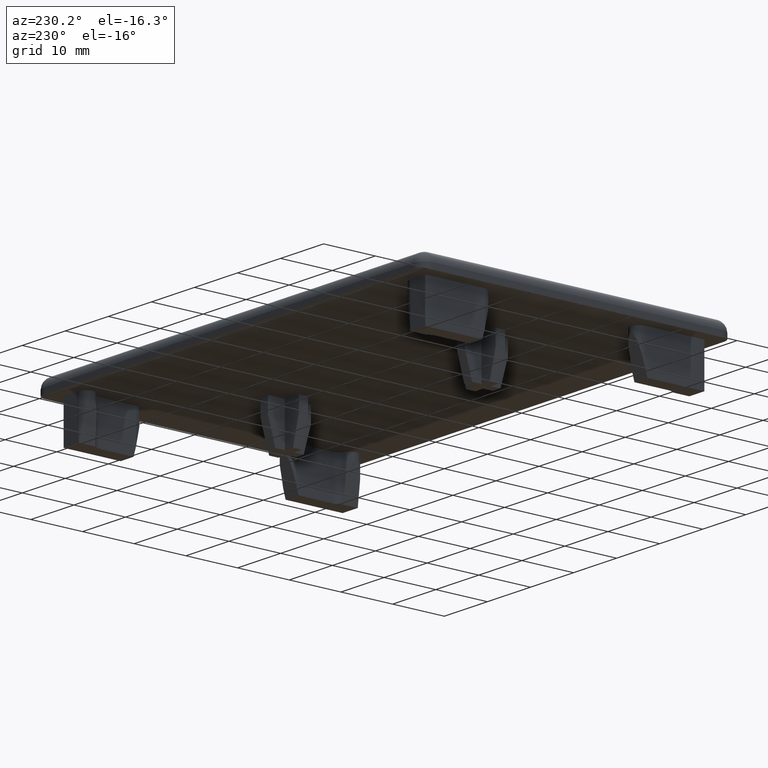
[diagram: clean part render]
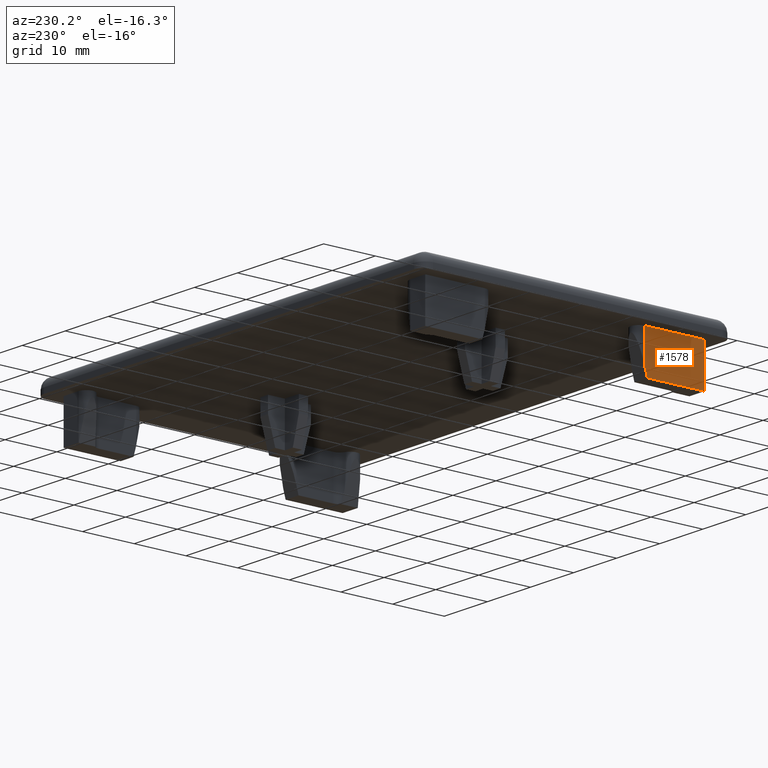
[diagram: same view with one face highlighted and labeled with its STEP entity id]
A machine part, auxiliary view. The second image highlights one B-rep face of the part: STEP entity #1578.
In plain terms, the highlighted planar face has unit normal (-1, 0, 0).
Its self-contained STEP definition (entity closure, byte-faithful):
#144=FACE_OUTER_BOUND('',#232,.T.);
#232=EDGE_LOOP('',(#1314,#1315,#1316,#1317,#1318));
#271=LINE('',#2183,#451);
#307=LINE('',#2273,#487);
#426=LINE('',#2550,#606);
#427=LINE('',#2554,#607);
#428=LINE('',#2555,#608);
#451=VECTOR('',#1737,1.70604208384116);
#487=VECTOR('',#1805,11.04);
#606=VECTOR('',#2076,6.35714285714276);
#607=VECTOR('',#2081,8.);
#608=VECTOR('',#2082,11.5);
#631=VERTEX_POINT('',#2181);
#632=VERTEX_POINT('',#2182);
#670=VERTEX_POINT('',#2271);
#752=VERTEX_POINT('',#2549);
#753=VERTEX_POINT('',#2553);
#775=EDGE_CURVE('',#631,#632,#271,.T.);
#817=EDGE_CURVE('',#670,#632,#307,.T.);
#956=EDGE_CURVE('',#752,#631,#426,.T.);
#958=EDGE_CURVE('',#753,#670,#427,.T.);
#959=EDGE_CURVE('',#752,#753,#428,.T.);
#1314=ORIENTED_EDGE('',*,*,#775,.T.);
#1315=ORIENTED_EDGE('',*,*,#817,.F.);
#1316=ORIENTED_EDGE('',*,*,#958,.F.);
#1317=ORIENTED_EDGE('',*,*,#959,.F.);
#1318=ORIENTED_EDGE('',*,*,#956,.T.);
#1503=PLANE('',#1695);
#1578=ADVANCED_FACE('',(#144),#1503,.T.);
#1695=AXIS2_PLACEMENT_3D('',#2552,#2079,#2080);
#1737=DIRECTION('',(0.,-0.269629925519974,-0.962964019714181));
#1805=DIRECTION('',(0.,1.,0.));
#2076=DIRECTION('',(0.,0.,-1.));
#2079=DIRECTION('center_axis',(-1.,0.,0.));
#2080=DIRECTION('ref_axis',(0.,1.,0.));
#2081=DIRECTION('',(0.,0.,-1.));
#2082=DIRECTION('',(0.,-1.,0.));
#2181=CARTESIAN_POINT('',(-42.,-15.5,-6.35714285714276));
#2182=CARTESIAN_POINT('',(-42.,-15.96,-8.));
#2183=CARTESIAN_POINT('',(-42.,-14.3427299703264,-2.22403560830863));
#2271=CARTESIAN_POINT('',(-42.,-27.,-8.));
#2273=CARTESIAN_POINT('',(-42.,-27.,-8.));
#2549=CARTESIAN_POINT('',(-42.,-15.5,0.));
#2550=CARTESIAN_POINT('',(-42.,-15.5,0.));
#2552=CARTESIAN_POINT('Origin',(-42.,-27.,0.));
#2553=CARTESIAN_POINT('',(-42.,-27.,0.));
#2554=CARTESIAN_POINT('',(-42.,-27.,0.));
#2555=CARTESIAN_POINT('',(-42.,-13.5,0.));